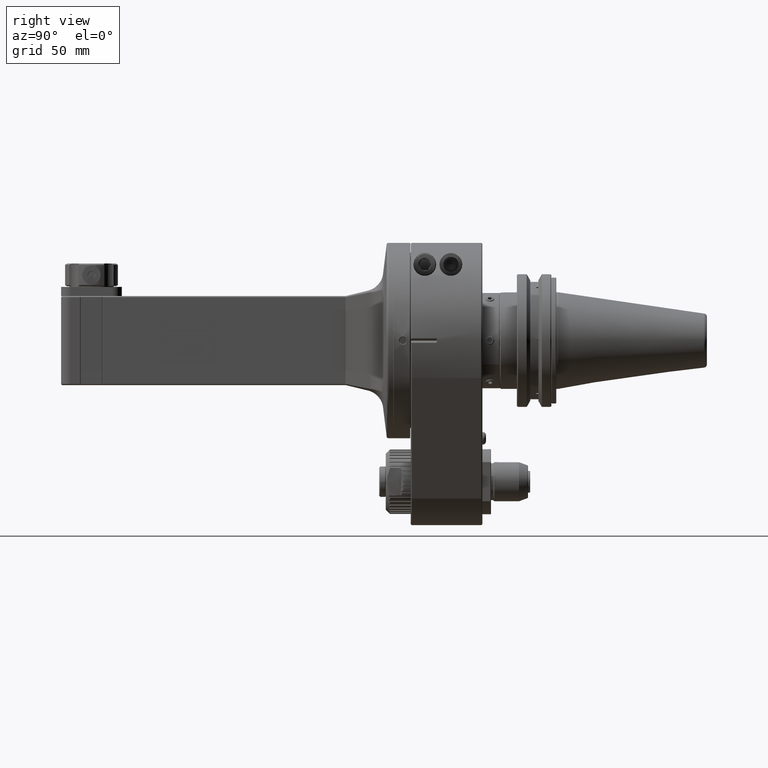
[diagram: clean part render]
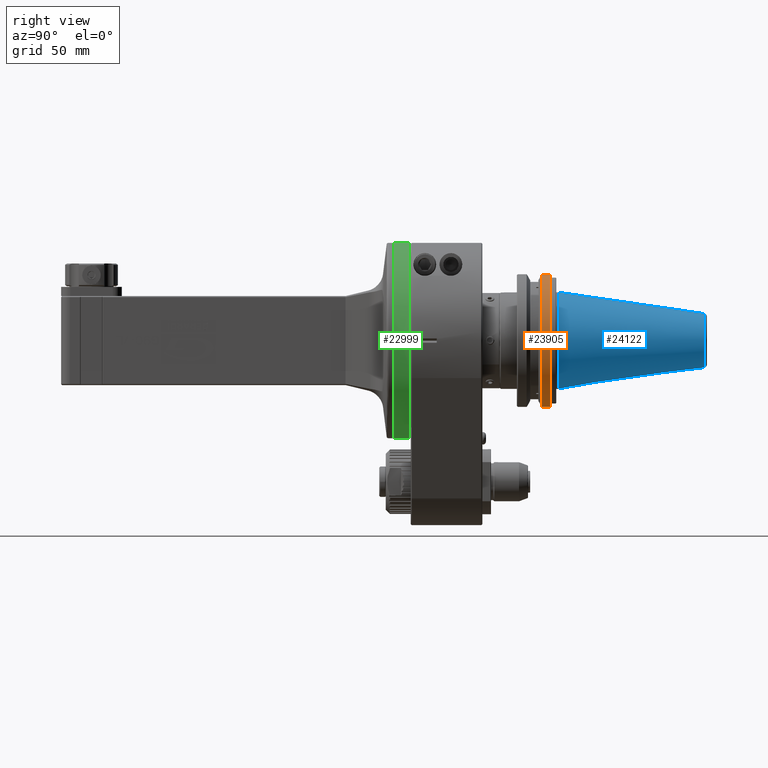
[diagram: same view with three faces highlighted in distinct colors, each labeled with its STEP entity id]
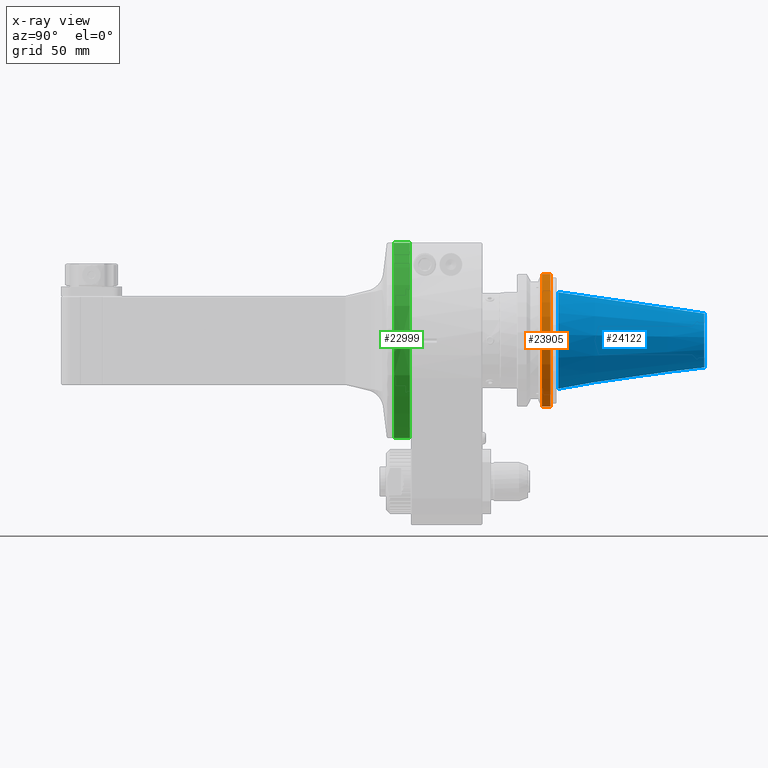
[diagram: x-ray of the same camera — body ghosted, the three highlighted faces saturated]
A machine part, right view with three faces highlighted in distinct colors.
The next image is the same camera in x-ray (body ghosted, the three faces saturated) — at least one of them is partly hidden behind the body in this view.
Their STEP definitions:

[orange] entity #23905 — the highlighted cylindrical surface (partial cylindrical patch) has radius 31.75 mm, axis along (0, 1, 0).
#2576=LINE('',#45261,#4651);
#2577=LINE('',#45273,#4652);
#4651=VECTOR('',#32174,10.);
#4652=VECTOR('',#32187,3.87100065683801);
#5147=CYLINDRICAL_SURFACE('',#26110,31.75);
#6459=FACE_OUTER_BOUND('',#7951,.T.);
#7951=EDGE_LOOP('',(#20821,#20822,#20823,#20824));
#9031=CIRCLE('',#26106,31.75);
#9034=CIRCLE('',#26111,31.75);
#11139=VERTEX_POINT('',#45258);
#11140=VERTEX_POINT('',#45260);
#11141=VERTEX_POINT('',#45266);
#11142=VERTEX_POINT('',#45271);
#14419=EDGE_CURVE('',#11140,#11139,#2576,.T.);
#14422=EDGE_CURVE('',#11139,#11141,#9031,.T.);
#14425=EDGE_CURVE('',#11141,#11142,#2577,.T.);
#14426=EDGE_CURVE('',#11142,#11140,#9034,.T.);
#20821=ORIENTED_EDGE('',*,*,#14425,.T.);
#20822=ORIENTED_EDGE('',*,*,#14426,.T.);
#20823=ORIENTED_EDGE('',*,*,#14419,.T.);
#20824=ORIENTED_EDGE('',*,*,#14422,.T.);
#23905=ADVANCED_FACE('',(#6459),#5147,.T.);
#26106=AXIS2_PLACEMENT_3D('',#45268,#32179,#32180);
#26110=AXIS2_PLACEMENT_3D('',#45274,#32188,#32189);
#26111=AXIS2_PLACEMENT_3D('',#45275,#32190,#32191);
#32174=DIRECTION('',(0.,-1.,0.));
#32179=DIRECTION('center_axis',(0.,1.,0.));
#32180=DIRECTION('ref_axis',(0.273599999999997,0.,0.961843563163991));
#32187=DIRECTION('',(2.32124392519199E-8,0.999999999999996,-8.16035671313497E-8));
#32188=DIRECTION('center_axis',(0.,1.,0.));
#32189=DIRECTION('ref_axis',(0.,0.,1.));
#32190=DIRECTION('center_axis',(0.,-1.,0.));
#32191=DIRECTION('ref_axis',(0.273599999999997,0.,-0.961843563163991));
#45258=CARTESIAN_POINT('',(8.6868,207.429,30.53853313046));
#45260=CARTESIAN_POINT('',(8.68680000097113,211.300001969355,30.5385331307065));
#45261=CARTESIAN_POINT('',(8.6867999999958,195.105,30.5385331304578));
#45266=CARTESIAN_POINT('',(8.6868,207.429,-30.53853313046));
#45268=CARTESIAN_POINT('Origin',(0.,207.429,-3.586397414106E-14));
#45271=CARTESIAN_POINT('',(8.68679984433195,211.300001846681,-30.5385333731707));
#45273=CARTESIAN_POINT('',(8.6868,207.429,-30.53853313046));
#45274=CARTESIAN_POINT('Origin',(0.,195.105,-3.369604168784E-14));
#45275=CARTESIAN_POINT('Origin',(-1.882938149764E-13,211.3000019705,-1.106280043684E-13));

[blue] entity #24122 — the highlighted conical surface has half-angle 8.29 deg.
#749=CONICAL_SURFACE('',#26485,17.32914378212,0.14468779499033);
#2821=LINE('',#47688,#4896);
#4896=VECTOR('',#33183,17.32914378212);
#6676=FACE_OUTER_BOUND('',#8196,.T.);
#8196=EDGE_LOOP('',(#21811,#21812,#21813,#21814,#21815,#21816));
#9191=CIRCLE('',#26483,22.225);
#9192=CIRCLE('',#26484,22.225);
#9193=CIRCLE('',#26486,12.43328756423);
#9194=CIRCLE('',#26487,12.43328756423);
#11437=VERTEX_POINT('',#47681);
#11438=VERTEX_POINT('',#47682);
#11439=VERTEX_POINT('',#47687);
#11440=VERTEX_POINT('',#47689);
#14903=EDGE_CURVE('',#11437,#11438,#9191,.T.);
#14904=EDGE_CURVE('',#11438,#11437,#9192,.T.);
#14906=EDGE_CURVE('',#11437,#11439,#2821,.T.);
#14907=EDGE_CURVE('',#11440,#11439,#9193,.T.);
#14908=EDGE_CURVE('',#11439,#11440,#9194,.T.);
#21811=ORIENTED_EDGE('',*,*,#14903,.T.);
#21812=ORIENTED_EDGE('',*,*,#14904,.T.);
#21813=ORIENTED_EDGE('',*,*,#14906,.T.);
#21814=ORIENTED_EDGE('',*,*,#14907,.F.);
#21815=ORIENTED_EDGE('',*,*,#14908,.F.);
#21816=ORIENTED_EDGE('',*,*,#14906,.F.);
#24122=ADVANCED_FACE('',(#6676),#749,.T.);
#26483=AXIS2_PLACEMENT_3D('',#47683,#33176,#33177);
#26484=AXIS2_PLACEMENT_3D('',#47684,#33178,#33179);
#26485=AXIS2_PLACEMENT_3D('',#47686,#33181,#33182);
#26486=AXIS2_PLACEMENT_3D('',#47690,#33184,#33185);
#26487=AXIS2_PLACEMENT_3D('',#47691,#33186,#33187);
#33176=DIRECTION('center_axis',(0.,1.,0.));
#33177=DIRECTION('ref_axis',(0.,0.,1.));
#33178=DIRECTION('center_axis',(0.,1.,0.));
#33179=DIRECTION('ref_axis',(0.,0.,1.));
#33181=DIRECTION('center_axis',(0.,-1.,0.));
#33182=DIRECTION('ref_axis',(0.,0.,-1.));
#33183=DIRECTION('',(1.76573854383491E-17,0.989550968907533,-0.144183493972653));
#33184=DIRECTION('center_axis',(0.,1.,0.));
#33185=DIRECTION('ref_axis',(0.,0.,-1.));
#33186=DIRECTION('center_axis',(0.,1.,0.));
#33187=DIRECTION('ref_axis',(0.,0.,-1.));
#47681=CARTESIAN_POINT('',(0.,215.,22.225));
#47682=CARTESIAN_POINT('',(-2.72177751110499E-15,215.,-22.225));
#47683=CARTESIAN_POINT('Origin',(0.,215.,0.));
#47684=CARTESIAN_POINT('Origin',(0.,215.,0.));
#47686=CARTESIAN_POINT('Origin',(0.,248.6009284458,-3.931079795113E-14));
#47687=CARTESIAN_POINT('',(0.,282.2018568916,12.43328756423));
#47688=CARTESIAN_POINT('',(-2.12220804647375E-15,248.6009284458,17.32914378212));
#47689=CARTESIAN_POINT('',(-0.319239443414268,282.2018568916,12.4291884623496));
#47690=CARTESIAN_POINT('Origin',(0.,282.2018568916,-4.136826142461E-14));
#47691=CARTESIAN_POINT('Origin',(0.,282.2018568916,-4.136826142461E-14));

[green] entity #22999 — the highlighted cylindrical surface (bore or boss wall) has radius 45 mm, axis along (0, 1, 0).
#325=B_SPLINE_CURVE_WITH_KNOTS('',3,(#37036,#37037,#37038,#37039,#37040,
#37041,#37042,#37043,#37044,#37045,#37046,#37047,#37048,#37049,#37050,#37051,
#37052,#37053,#37054,#37055),.UNSPECIFIED.,.F.,.F.,(4,2,2,2,2,2,2,2,2,4),
(2.95044139945787E-5,0.0363559276030335,0.0735671351715966,0.129008104080087,
0.1755951997572,0.221746521497546,0.267921930117648,0.319095961959409,0.375220982453293,
0.432935145285643),.UNSPECIFIED.);
#326=B_SPLINE_CURVE_WITH_KNOTS('',3,(#37056,#37057,#37058,#37059,#37060,
#37061,#37062,#37063,#37064,#37065,#37066,#37067,#37068,#37069,#37070,#37071,
#37072,#37073,#37074,#37075),.UNSPECIFIED.,.F.,.F.,(4,2,2,2,2,2,2,2,2,4),
(2.95044139768252E-5,0.0363559276030991,0.073567135171745,0.129008104080278,
0.175595199757401,0.221746521497813,0.267921930118042,0.319095961960169,
0.375220982454591,0.432935145287524),.UNSPECIFIED.);
#1021=LINE('',#37032,#3096);
#3096=VECTOR('',#27811,45.);
#5005=CYLINDRICAL_SURFACE('',#24698,45.);
#5234=FACE_BOUND('',#6962,.T.);
#5553=FACE_OUTER_BOUND('',#6961,.T.);
#6961=EDGE_LOOP('',(#16104,#16105,#16106,#16107,#16108,#16109));
#6962=EDGE_LOOP('',(#16110,#16111));
#8541=CIRCLE('',#24696,45.);
#8542=CIRCLE('',#24697,45.);
#8543=CIRCLE('',#24699,45.);
#8544=CIRCLE('',#24700,45.);
#9639=VERTEX_POINT('',#37023);
#9640=VERTEX_POINT('',#37024);
#9641=VERTEX_POINT('',#37029);
#9642=VERTEX_POINT('',#37030);
#9643=VERTEX_POINT('',#37034);
#9644=VERTEX_POINT('',#37035);
#12114=EDGE_CURVE('',#9639,#9640,#8541,.T.);
#12115=EDGE_CURVE('',#9640,#9639,#8542,.T.);
#12117=EDGE_CURVE('',#9641,#9642,#8543,.T.);
#12118=EDGE_CURVE('',#9641,#9639,#1021,.T.);
#12119=EDGE_CURVE('',#9642,#9641,#8544,.T.);
#12120=EDGE_CURVE('',#9643,#9644,#325,.T.);
#12121=EDGE_CURVE('',#9644,#9643,#326,.T.);
#16104=ORIENTED_EDGE('',*,*,#12117,.F.);
#16105=ORIENTED_EDGE('',*,*,#12118,.T.);
#16106=ORIENTED_EDGE('',*,*,#12114,.T.);
#16107=ORIENTED_EDGE('',*,*,#12115,.T.);
#16108=ORIENTED_EDGE('',*,*,#12118,.F.);
#16109=ORIENTED_EDGE('',*,*,#12119,.F.);
#16110=ORIENTED_EDGE('',*,*,#12120,.T.);
#16111=ORIENTED_EDGE('',*,*,#12121,.T.);
#22999=ADVANCED_FACE('',(#5553,#5234),#5005,.T.);
#24696=AXIS2_PLACEMENT_3D('',#37025,#27802,#27803);
#24697=AXIS2_PLACEMENT_3D('',#37026,#27804,#27805);
#24698=AXIS2_PLACEMENT_3D('',#37028,#27807,#27808);
#24699=AXIS2_PLACEMENT_3D('',#37031,#27809,#27810);
#24700=AXIS2_PLACEMENT_3D('',#37033,#27812,#27813);
#27802=DIRECTION('center_axis',(0.,1.,0.));
#27803=DIRECTION('ref_axis',(0.,0.,-1.));
#27804=DIRECTION('center_axis',(0.,1.,0.));
#27805=DIRECTION('ref_axis',(0.,0.,-1.));
#27807=DIRECTION('center_axis',(0.,1.,0.));
#27808=DIRECTION('ref_axis',(0.,0.,1.));
#27809=DIRECTION('center_axis',(0.,1.,0.));
#27810=DIRECTION('ref_axis',(0.,0.,1.));
#27811=DIRECTION('',(0.,-1.,0.));
#27812=DIRECTION('center_axis',(0.,1.,0.));
#27813=DIRECTION('ref_axis',(0.,0.,1.));
#37023=CARTESIAN_POINT('',(0.,139.2000034783,-45.));
#37024=CARTESIAN_POINT('',(2.34660952878764E-13,139.20000347829,45.0000000000122));
#37025=CARTESIAN_POINT('Origin',(0.,139.2000034783,0.));
#37026=CARTESIAN_POINT('Origin',(0.,139.2000034783,0.));
#37028=CARTESIAN_POINT('Origin',(0.,138.61,0.));
#37029=CARTESIAN_POINT('',(0.,146.5999956375,-45.));
#37030=CARTESIAN_POINT('',(-6.78750142728865E-13,146.599995637516,45.0000000000214));
#37031=CARTESIAN_POINT('Origin',(0.,146.5999956375,0.));
#37032=CARTESIAN_POINT('',(-5.51091059616309E-15,138.61,-45.));
#37033=CARTESIAN_POINT('Origin',(0.,146.5999956375,0.));
#37034=CARTESIAN_POINT('',(44.9616057546834,143.399998791103,1.85849612628537));
#37035=CARTESIAN_POINT('',(44.9616057546834,143.400001208897,-1.85849612628535));
#37036=CARTESIAN_POINT('Ctrl Pts',(44.9616193902987,143.399998994427,1.85816624711496));
#37037=CARTESIAN_POINT('Ctrl Pts',(44.961618307081,143.521086745176,1.8581924574831));
#37038=CARTESIAN_POINT('Ctrl Pts',(44.962112355751,143.641977960438,1.84635128322431));
#37039=CARTESIAN_POINT('Ctrl Pts',(44.9640536727835,143.882429816529,1.79846198236267));
#37040=CARTESIAN_POINT('Ctrl Pts',(44.9655197589791,144.001415157318,1.76192903312012));
#37041=CARTESIAN_POINT('Ctrl Pts',(44.9701263498132,144.286924893836,1.64102933649525));
#37042=CARTESIAN_POINT('Ctrl Pts',(44.9748053814834,144.50368012293,1.51969960155303));
#37043=CARTESIAN_POINT('Ctrl Pts',(44.9858920350495,144.881103875895,1.14000093528221));
#37044=CARTESIAN_POINT('Ctrl Pts',(44.9908737848937,145.017742861745,0.934243740103589));
#37045=CARTESIAN_POINT('Ctrl Pts',(44.9979762928219,145.202908825433,0.482395310463911));
#37046=CARTESIAN_POINT('Ctrl Pts',(45.0000047643426,145.250134606411,0.241859566562497));
#37047=CARTESIAN_POINT('Ctrl Pts',(44.9999952157681,145.24985880139,-0.243755912199797));
#37048=CARTESIAN_POINT('Ctrl Pts',(44.9979534566108,145.202359454253,-0.484605215604432));
#37049=CARTESIAN_POINT('Ctrl Pts',(44.9904704534538,145.00723352332,-0.959055347812645));
#37050=CARTESIAN_POINT('Ctrl Pts',(44.9853090694185,144.861344705564,-1.16015030898116));
#37051=CARTESIAN_POINT('Ctrl Pts',(44.9758211252301,144.538050248824,-1.48470858449138));
#37052=CARTESIAN_POINT('Ctrl Pts',(44.970931321892,144.337685656258,-1.61986780696457));
#37053=CARTESIAN_POINT('Ctrl Pts',(44.9637573549813,143.891314270629,-1.80821905265612));
#37054=CARTESIAN_POINT('Ctrl Pts',(44.9616021738019,143.644585456749,-1.85858279988485));
#37055=CARTESIAN_POINT('Ctrl Pts',(44.961592119068,143.400001412221,-1.85882600545576));
#37056=CARTESIAN_POINT('Ctrl Pts',(44.9616193902987,143.400001005573,-1.85816624711495));
#37057=CARTESIAN_POINT('Ctrl Pts',(44.961618307081,143.278913254824,-1.85819245748309));
#37058=CARTESIAN_POINT('Ctrl Pts',(44.962112355751,143.158022039562,-1.84635128322428));
#37059=CARTESIAN_POINT('Ctrl Pts',(44.9640536727835,142.91757018347,-1.79846198236247));
#37060=CARTESIAN_POINT('Ctrl Pts',(44.9655197589791,142.798584842681,-1.7619290331198));
#37061=CARTESIAN_POINT('Ctrl Pts',(44.9701263498132,142.513075106163,-1.64102933649466));
#37062=CARTESIAN_POINT('Ctrl Pts',(44.9748053814835,142.296319877069,-1.51969960155231));
#37063=CARTESIAN_POINT('Ctrl Pts',(44.9858920350495,141.918896124105,-1.1400009352815));
#37064=CARTESIAN_POINT('Ctrl Pts',(44.9908737848937,141.782257138255,-0.934243740102953));
#37065=CARTESIAN_POINT('Ctrl Pts',(44.9979762928219,141.597091174567,-0.482395310463403));
#37066=CARTESIAN_POINT('Ctrl Pts',(45.0000047643426,141.549865393589,-0.24185956656217));
#37067=CARTESIAN_POINT('Ctrl Pts',(44.9999952157681,141.55014119861,0.243755912199679));
#37068=CARTESIAN_POINT('Ctrl Pts',(44.9979534566108,141.597640545747,0.484605215604288));
#37069=CARTESIAN_POINT('Ctrl Pts',(44.9904704534538,141.79276647668,0.959055347812898));
#37070=CARTESIAN_POINT('Ctrl Pts',(44.9853090694185,141.938655294437,1.16015030898134));
#37071=CARTESIAN_POINT('Ctrl Pts',(44.9758211252302,142.261949751176,1.48470858449117));
#37072=CARTESIAN_POINT('Ctrl Pts',(44.970931321892,142.462314343742,1.61986780696443));
#37073=CARTESIAN_POINT('Ctrl Pts',(44.9637573549814,142.908685729371,1.80821905265611));
#37074=CARTESIAN_POINT('Ctrl Pts',(44.9616021738018,143.155414543251,1.85858279988487));
#37075=CARTESIAN_POINT('Ctrl Pts',(44.961592119068,143.399998587779,1.85882600545576));